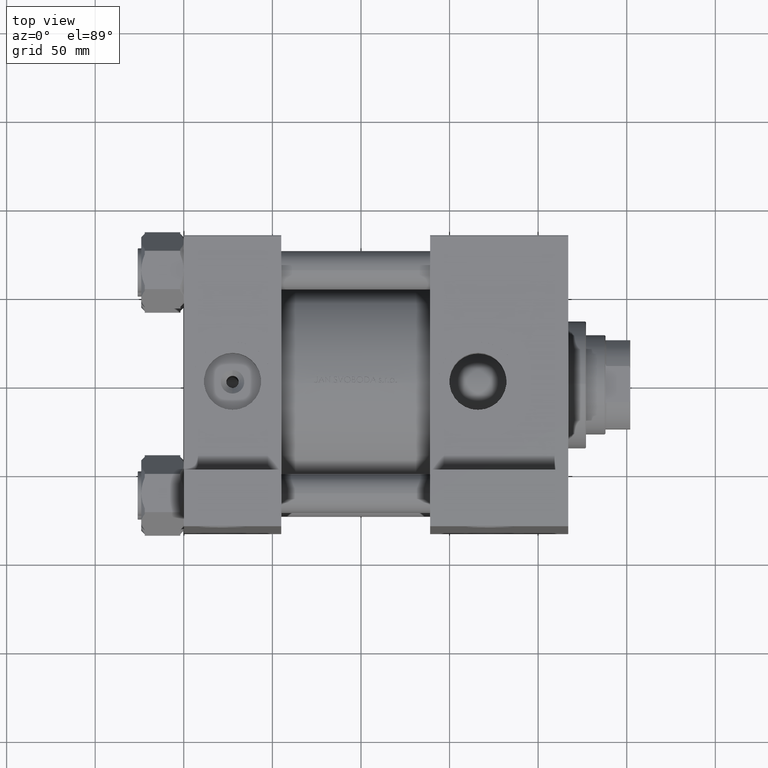
[diagram: clean part render]
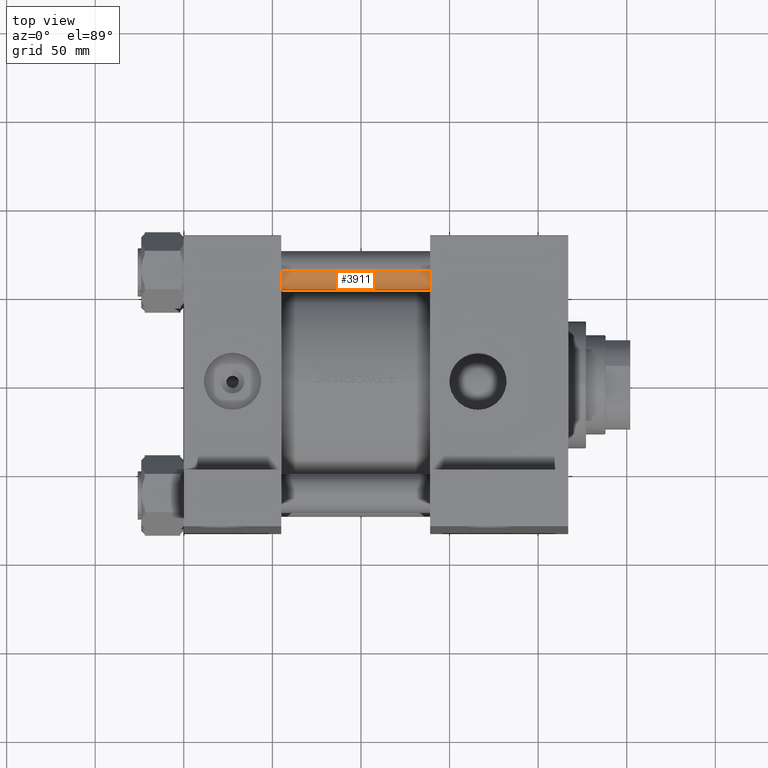
[diagram: same view with one face highlighted and labeled with its STEP entity id]
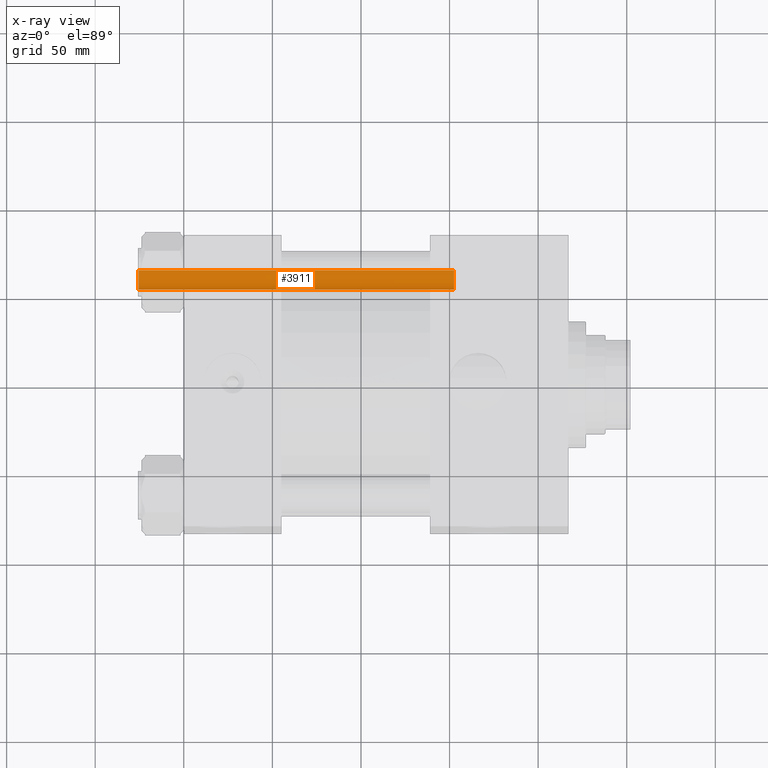
[diagram: x-ray of the same camera — body ghosted, the highlighted face saturated]
A machine part, top view. The second image highlights one B-rep face of the part: STEP entity #3911.
The next image is the same camera in x-ray: the body ghosted, the highlighted face saturated — about 0% of this face is hidden behind the body in this view.
In plain terms, the highlighted cylindrical surface (edge-blend (fillet) strip) has radius 11 mm, axis along (-1, -0, -0).
Its self-contained STEP definition (entity closure, byte-faithful):
#134 = DIRECTION ( 'NONE',  ( -0.000000000000000000, -0.000000000000000000, 1.000000000000000000 ) ) ;
#1795 = CARTESIAN_POINT ( 'NONE',  ( 0.000000000000000000, 0.000000000000000000, 179.0000000000000000 ) ) ;
#3312 = CARTESIAN_POINT ( 'NONE',  ( 11.00000000000000000, 1.347111479062088207E-15, 178.5000000000000853 ) ) ;
#3911 = ADVANCED_FACE ( 'NONE', ( #20494 ), #28505, .T. ) ;
#6122 = VECTOR ( 'NONE', #41205, 1000.000000000000000 ) ;
#6701 = CIRCLE ( 'NONE', #29212, 11.00000000000000000 ) ;
#7091 = ORIENTED_EDGE ( 'NONE', *, *, #43608, .T. ) ;
#11544 = LINE ( 'NONE', #34868, #6122 ) ;
#12071 = LINE ( 'NONE', #26905, #41734 ) ;
#13105 = DIRECTION ( 'NONE',  ( 1.000000000000000000, 0.000000000000000000, 0.000000000000000000 ) ) ;
#13278 = EDGE_CURVE ( 'NONE', #23254, #19528, #42881, .T. ) ;
#16233 = VERTEX_POINT ( 'NONE', #22469 ) ;
#19528 = VERTEX_POINT ( 'NONE', #40018 ) ;
#19583 = VERTEX_POINT ( 'NONE', #3312 ) ;
#20494 = FACE_OUTER_BOUND ( 'NONE', #45532, .T. ) ;
#21923 = AXIS2_PLACEMENT_3D ( 'NONE', #25668, #134, #44388 ) ;
#22469 = CARTESIAN_POINT ( 'NONE',  ( -11.00000000000000000, 0.000000000000000000, 178.5000000000000853 ) ) ;
#23254 = VERTEX_POINT ( 'NONE', #27615 ) ;
#24861 = DIRECTION ( 'NONE',  ( -1.000000000000000000, 0.000000000000000000, 0.000000000000000000 ) ) ;
#25668 = CARTESIAN_POINT ( 'NONE',  ( 0.000000000000000000, 0.000000000000000000, 0.5000000000001392220 ) ) ;
#26905 = CARTESIAN_POINT ( 'NONE',  ( 11.00000000000000000, 1.347111479062088207E-15, 179.0000000000000000 ) ) ;
#27615 = CARTESIAN_POINT ( 'NONE',  ( -11.00000000000000000, 0.000000000000000000, 0.5000000000001392220 ) ) ;
#27940 = DIRECTION ( 'NONE',  ( 0.000000000000000000, 0.000000000000000000, -1.000000000000000000 ) ) ;
#28183 = CARTESIAN_POINT ( 'NONE',  ( 0.000000000000000000, 0.000000000000000000, 178.5000000000000853 ) ) ;
#28505 = CYLINDRICAL_SURFACE ( 'NONE', #34077, 11.00000000000000000 ) ;
#29212 = AXIS2_PLACEMENT_3D ( 'NONE', #28183, #27940, #13105 ) ;
#33714 = EDGE_CURVE ( 'NONE', #19583, #16233, #6701, .T. ) ;
#33730 = DIRECTION ( 'NONE',  ( -0.000000000000000000, -0.000000000000000000, -1.000000000000000000 ) ) ;
#34077 = AXIS2_PLACEMENT_3D ( 'NONE', #1795, #36051, #24861 ) ;
#34722 = ORIENTED_EDGE ( 'NONE', *, *, #33714, .T. ) ;
#34868 = CARTESIAN_POINT ( 'NONE',  ( -11.00000000000000000, 0.000000000000000000, 179.0000000000000000 ) ) ;
#36051 = DIRECTION ( 'NONE',  ( -0.000000000000000000, -0.000000000000000000, -1.000000000000000000 ) ) ;
#36345 = ORIENTED_EDGE ( 'NONE', *, *, #13278, .T. ) ;
#36963 = EDGE_CURVE ( 'NONE', #19583, #19528, #12071, .T. ) ;
#40018 = CARTESIAN_POINT ( 'NONE',  ( 11.00000000000000000, 1.347111479062088207E-15, 0.5000000000001392220 ) ) ;
#40785 = ORIENTED_EDGE ( 'NONE', *, *, #36963, .F. ) ;
#41205 = DIRECTION ( 'NONE',  ( -0.000000000000000000, -0.000000000000000000, -1.000000000000000000 ) ) ;
#41734 = VECTOR ( 'NONE', #33730, 1000.000000000000000 ) ;
#42881 = CIRCLE ( 'NONE', #21923, 11.00000000000000000 ) ;
#43608 = EDGE_CURVE ( 'NONE', #16233, #23254, #11544, .T. ) ;
#44388 = DIRECTION ( 'NONE',  ( 1.000000000000000000, 0.000000000000000000, 0.000000000000000000 ) ) ;
#45532 = EDGE_LOOP ( 'NONE', ( #40785, #34722, #7091, #36345 ) ) ;